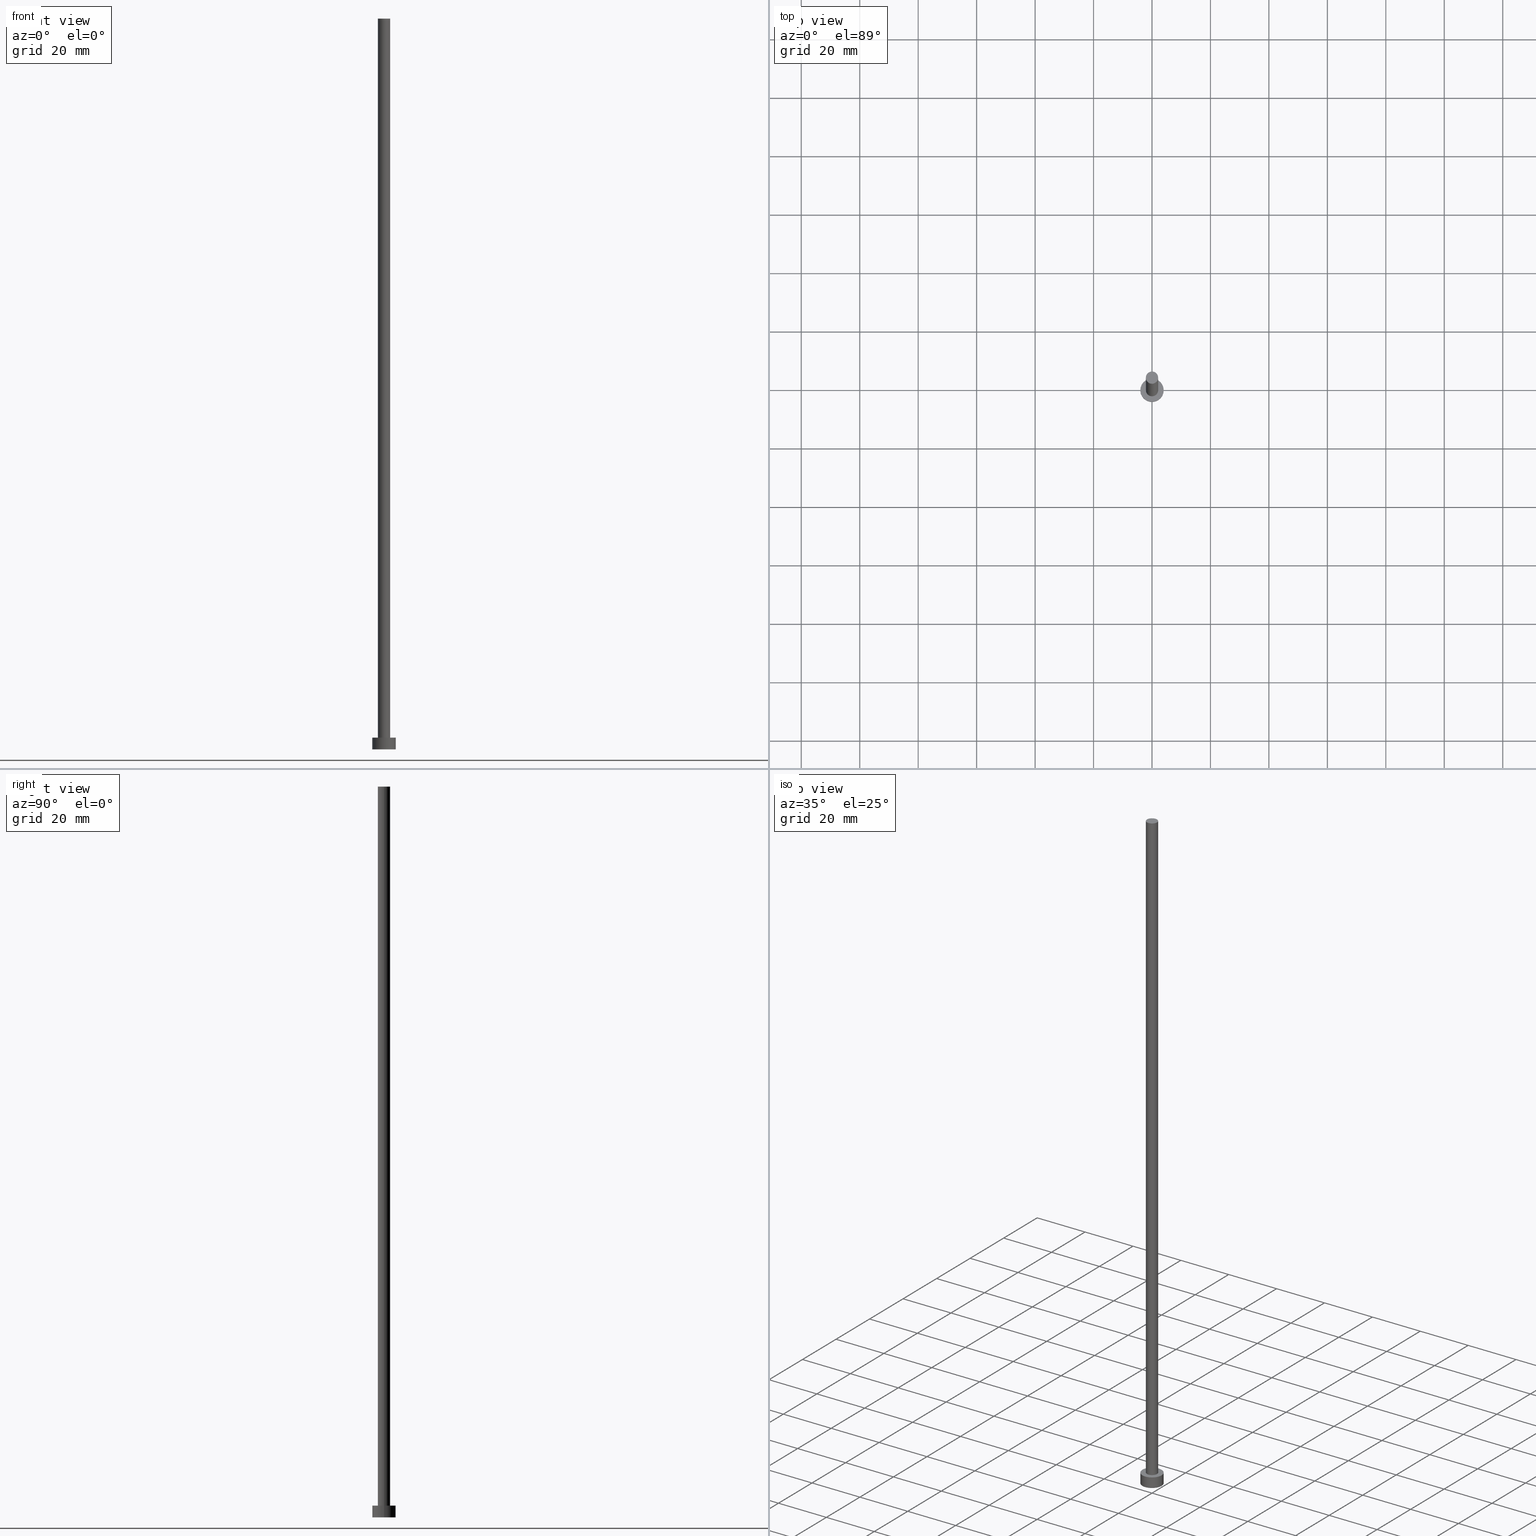
[diagram: canonical four-view strip — front | top / right | iso, engineering-drawing reading convention]
A machine part, canonical four-view strip (front | top / right | iso — engineering-drawing reading convention). The complete STEP part file that produces these views, byte-faithful:
ISO-10303-21;
HEADER;
FILE_DESCRIPTION (( 'STEP AP203' ),
    '1' );
FILE_NAME ('33a4.STEP',
    '2023-02-13T16:34:20',
    ( '' ),
    ( '' ),
    'SwSTEP 2.0',
    'SolidWorks 2019',
    '' );
FILE_SCHEMA (( 'CONFIG_CONTROL_DESIGN' ));
ENDSEC;

DATA;
#1 = PERSON_AND_ORGANIZATION_ROLE ( 'classification_officer' ) ;
#2 = PERSON_AND_ORGANIZATION ( #100, #73 ) ;
#3 = CIRCLE ( 'NONE', #251, 2.100000000000000089 ) ;
#4 = MECHANICAL_CONTEXT ( 'NONE', #171, 'mechanical' ) ;
#5 = DIRECTION ( 'NONE',  ( 1.000000000000000000, 0.000000000000000000, 0.000000000000000000 ) ) ;
#6 = ORIENTED_EDGE ( 'NONE', *, *, #119, .T. ) ;
#7 = AXIS2_PLACEMENT_3D ( 'NONE', #243, #83, #69 ) ;
#8 = ADVANCED_FACE ( 'NONE', ( #150 ), #140, .T. ) ;
#9 = CARTESIAN_POINT ( 'NONE',  ( -2.100000000000000089, 0.000000000000000000, 4.000000000000000000 ) ) ;
#10 = EDGE_LOOP ( 'NONE', ( #163, #85, #168, #194 ) ) ;
#11 = LINE ( 'NONE', #66, #172 ) ;
#12 = CARTESIAN_POINT ( 'NONE',  ( 0.000000000000000000, 0.000000000000000000, 4.000000000000000000 ) ) ;
#13 = ORIENTED_EDGE ( 'NONE', *, *, #121, .F. ) ;
#14 = AXIS2_PLACEMENT_3D ( 'NONE', #36, #129, #253 ) ;
#15 = DIRECTION ( 'NONE',  ( 0.000000000000000000, 0.000000000000000000, 1.000000000000000000 ) ) ;
#16 = DIRECTION ( 'NONE',  ( -0.000000000000000000, -0.000000000000000000, -1.000000000000000000 ) ) ;
#17 = AXIS2_PLACEMENT_3D ( 'NONE', #186, #33, #169 ) ;
#18 = EDGE_LOOP ( 'NONE', ( #220, #228 ) ) ;
#19 = PLANE ( 'NONE',  #133 ) ;
#20 = PERSON_AND_ORGANIZATION ( #100, #73 ) ;
#21 =( NAMED_UNIT ( * ) PLANE_ANGLE_UNIT ( ) SI_UNIT ( $, .RADIAN. ) );
#22 = DIRECTION ( 'NONE',  ( 0.000000000000000000, 0.000000000000000000, 1.000000000000000000 ) ) ;
#23 = PRODUCT_DEFINITION_FORMATION_WITH_SPECIFIED_SOURCE ( 'LIBOVOLN�', '', #95, .NOT_KNOWN. ) ;
#24 = PERSON_AND_ORGANIZATION ( #100, #73 ) ;
#25 = APPROVAL_PERSON_ORGANIZATION ( #2, #215, #130 ) ;
#26 = DIRECTION ( 'NONE',  ( 0.000000000000000000, 0.000000000000000000, 1.000000000000000000 ) ) ;
#27 = CC_DESIGN_DATE_AND_TIME_ASSIGNMENT ( #82, #165, ( #109 ) ) ;
#28 = CARTESIAN_POINT ( 'NONE',  ( 0.000000000000000000, 0.000000000000000000, 250.0000000000000000 ) ) ;
#29 = EDGE_CURVE ( 'NONE', #30, #204, #11, .T. ) ;
#30 = VERTEX_POINT ( 'NONE', #184 ) ;
#31 = AXIS2_PLACEMENT_3D ( 'NONE', #43, #26, #45 ) ;
#32 = ORIENTED_EDGE ( 'NONE', *, *, #235, .T. ) ;
#33 = DIRECTION ( 'NONE',  ( 0.000000000000000000, 0.000000000000000000, 1.000000000000000000 ) ) ;
#34 = VERTEX_POINT ( 'NONE', #161 ) ;
#35 = FACE_OUTER_BOUND ( 'NONE', #71, .T. ) ;
#36 = CARTESIAN_POINT ( 'NONE',  ( 0.000000000000000000, 0.000000000000000000, 4.000000000000000000 ) ) ;
#37 = EDGE_CURVE ( 'NONE', #144, #204, #248, .T. ) ;
#38 = CYLINDRICAL_SURFACE ( 'NONE', #218, 4.000000000000000000 ) ;
#39 = DIRECTION ( 'NONE',  ( 0.000000000000000000, 0.000000000000000000, 1.000000000000000000 ) ) ;
#40 = CC_DESIGN_APPROVAL ( #51, ( #109 ) ) ;
#41 = APPROVAL_DATE_TIME ( #59, #175 ) ;
#42 = DATE_AND_TIME ( #136, #185 ) ;
#43 = CARTESIAN_POINT ( 'NONE',  ( 0.000000000000000000, 0.000000000000000000, 0.000000000000000000 ) ) ;
#44 = CIRCLE ( 'NONE', #149, 2.100000000000000089 ) ;
#45 = DIRECTION ( 'NONE',  ( 1.000000000000000000, 0.000000000000000000, 0.000000000000000000 ) ) ;
#46 = DIRECTION ( 'NONE',  ( -0.000000000000000000, -0.000000000000000000, -1.000000000000000000 ) ) ;
#47 = AXIS2_PLACEMENT_3D ( 'NONE', #247, #188, #250 ) ;
#48 = EDGE_CURVE ( 'NONE', #34, #76, #232, .T. ) ;
#49 = EDGE_LOOP ( 'NONE', ( #234, #50 ) ) ;
#50 = ORIENTED_EDGE ( 'NONE', *, *, #37, .F. ) ;
#51 = APPROVAL ( #160, 'NEUR�EN�' ) ;
#52 = ORIENTED_EDGE ( 'NONE', *, *, #119, .F. ) ;
#53 = EDGE_LOOP ( 'NONE', ( #132, #208, #6, #32 ) ) ;
#54 = CC_DESIGN_PERSON_AND_ORGANIZATION_ASSIGNMENT ( #180, #221, ( #23 ) ) ;
#55 = CYLINDRICAL_SURFACE ( 'NONE', #67, 2.100000000000000089 ) ;
#56 = CC_DESIGN_APPROVAL ( #215, ( #23 ) ) ;
#57 = DATE_TIME_ROLE ( 'classification_date' ) ;
#58 = CYLINDRICAL_SURFACE ( 'NONE', #14, 4.000000000000000000 ) ;
#59 = DATE_AND_TIME ( #94, #254 ) ;
#60 = VECTOR ( 'NONE', #90, 1000.000000000000000 ) ;
#61 = PRODUCT_DEFINITION_SHAPE ( 'NONE', 'NONE',  #109 ) ;
#62 = APPROVAL_DATE_TIME ( #93, #215 ) ;
#63 = PRODUCT_RELATED_PRODUCT_CATEGORY ( 'detail', '', ( #95 ) ) ;
#64 = LOCAL_TIME ( 17, 34, 20.00000000000000000, #141 ) ;
#65 = PERSON_AND_ORGANIZATION_ROLE ( 'creator' ) ;
#66 = CARTESIAN_POINT ( 'NONE',  ( -4.000000000000000000, 0.000000000000000000, 4.000000000000000000 ) ) ;
#67 = AXIS2_PLACEMENT_3D ( 'NONE', #88, #148, #128 ) ;
#68 = EDGE_LOOP ( 'NONE', ( #210, #84 ) ) ;
#69 = DIRECTION ( 'NONE',  ( 1.000000000000000000, 0.000000000000000000, 0.000000000000000000 ) ) ;
#70 = PLANE ( 'NONE',  #47 ) ;
#71 = EDGE_LOOP ( 'NONE', ( #101, #75, #249, #52 ) ) ;
#72 = CARTESIAN_POINT ( 'NONE',  ( 2.100000000000000089, 2.571758278209441957E-16, 250.0000000000000000 ) ) ;
#73 = ORGANIZATION ( 'NEUR�EN�', 'NEUR�EN�', '' ) ;
#74 = CARTESIAN_POINT ( 'NONE',  ( 0.000000000000000000, 0.000000000000000000, 4.000000000000000000 ) ) ;
#75 = ORIENTED_EDGE ( 'NONE', *, *, #153, .T. ) ;
#76 = VERTEX_POINT ( 'NONE', #246 ) ;
#77 = DIRECTION ( 'NONE',  ( -0.000000000000000000, -0.000000000000000000, -1.000000000000000000 ) ) ;
#78 = CARTESIAN_POINT ( 'NONE',  ( -4.000000000000000000, 0.000000000000000000, 0.000000000000000000 ) ) ;
#79 = ADVANCED_FACE ( 'NONE', ( #227, #146 ), #19, .T. ) ;
#80 = UNCERTAINTY_MEASURE_WITH_UNIT (LENGTH_MEASURE( 1.000000000000000082E-05 ), #118, 'distance_accuracy_value', 'NONE');
#81 = APPROVAL_DATE_TIME ( #183, #51 ) ;
#82 = DATE_AND_TIME ( #225, #64 ) ;
#83 = DIRECTION ( 'NONE',  ( 0.000000000000000000, 0.000000000000000000, 1.000000000000000000 ) ) ;
#84 = ORIENTED_EDGE ( 'NONE', *, *, #145, .T. ) ;
#85 = ORIENTED_EDGE ( 'NONE', *, *, #255, .T. ) ;
#86 = AXIS2_PLACEMENT_3D ( 'NONE', #205, #174, #106 ) ;
#87 = ADVANCED_FACE ( 'NONE', ( #207 ), #122, .F. ) ;
#88 = CARTESIAN_POINT ( 'NONE',  ( 0.000000000000000000, 0.000000000000000000, 250.0000000000000000 ) ) ;
#89 = CLOSED_SHELL ( 'NONE', ( #157, #164, #239, #79, #87, #8, #135 ) ) ;
#90 = DIRECTION ( 'NONE',  ( -0.000000000000000000, -0.000000000000000000, -1.000000000000000000 ) ) ;
#91 = CC_DESIGN_SECURITY_CLASSIFICATION ( #226, ( #23 ) ) ;
#92 =( NAMED_UNIT ( * ) SI_UNIT ( $, .STERADIAN. ) SOLID_ANGLE_UNIT ( ) );
#93 = DATE_AND_TIME ( #192, #237 ) ;
#94 = CALENDAR_DATE ( 2023, 13, 2 ) ;
#95 = PRODUCT ( '33a4', '33a4', '', ( #4 ) ) ;
#96 = EDGE_CURVE ( 'NONE', #76, #34, #103, .T. ) ;
#97 = AXIS2_PLACEMENT_3D ( 'NONE', #203, #98, #5 ) ;
#98 = DIRECTION ( 'NONE',  ( 0.000000000000000000, 0.000000000000000000, 1.000000000000000000 ) ) ;
#99 = DIRECTION ( 'NONE',  ( -0.000000000000000000, -0.000000000000000000, -1.000000000000000000 ) ) ;
#100 = PERSON ( 'NEUR�EN�', 'NEUR�EN�', 'NEUR�EN�', ('NEUR�EN�'), ('NEUR�EN�'), ('NEUR�EN�') ) ;
#101 = ORIENTED_EDGE ( 'NONE', *, *, #48, .F. ) ;
#102 = LINE ( 'NONE', #187, #143 ) ;
#103 = CIRCLE ( 'NONE', #17, 2.100000000000000089 ) ;
#104 = DIRECTION ( 'NONE',  ( -1.000000000000000000, 0.000000000000000000, 0.000000000000000000 ) ) ;
#105 = VERTEX_POINT ( 'NONE', #244 ) ;
#106 = DIRECTION ( 'NONE',  ( 1.000000000000000000, 0.000000000000000000, -0.000000000000000000 ) ) ;
#107 = ADVANCED_BREP_SHAPE_REPRESENTATION ( '33a4', ( #238, #31 ), #110 ) ;
#108 = ORIENTED_EDGE ( 'NONE', *, *, #189, .T. ) ;
#109 = PRODUCT_DEFINITION ( 'NEZN�M�', '', #23, #230 ) ;
#110 =( GEOMETRIC_REPRESENTATION_CONTEXT ( 3 ) GLOBAL_UNCERTAINTY_ASSIGNED_CONTEXT ( ( #80 ) ) GLOBAL_UNIT_ASSIGNED_CONTEXT ( ( #118, #21, #92 ) ) REPRESENTATION_CONTEXT ( 'NONE', 'WORKASPACE' ) );
#111 = DIRECTION ( 'NONE',  ( 1.000000000000000000, 0.000000000000000000, 0.000000000000000000 ) ) ;
#112 = COORDINATED_UNIVERSAL_TIME_OFFSET ( 1, 0, .AHEAD. ) ;
#113 = FACE_OUTER_BOUND ( 'NONE', #173, .T. ) ;
#114 = CARTESIAN_POINT ( 'NONE',  ( 4.000000000000000000, 4.898587196589412829E-16, 4.000000000000000000 ) ) ;
#115 = CC_DESIGN_PERSON_AND_ORGANIZATION_ASSIGNMENT ( #162, #65, ( #109 ) ) ;
#116 = CARTESIAN_POINT ( 'NONE',  ( 0.000000000000000000, 0.000000000000000000, 4.000000000000000000 ) ) ;
#117 = APPROVAL_STATUS ( 'not_yet_approved' ) ;
#118 =( LENGTH_UNIT ( ) NAMED_UNIT ( * ) SI_UNIT ( .MILLI., .METRE. ) );
#119 = EDGE_CURVE ( 'NONE', #76, #123, #102, .T. ) ;
#120 = APPROVAL_PERSON_ORGANIZATION ( #213, #175, #176 ) ;
#121 = EDGE_CURVE ( 'NONE', #30, #233, #211, .T. ) ;
#122 = PLANE ( 'NONE',  #86 ) ;
#123 = VERTEX_POINT ( 'NONE', #9 ) ;
#124 = DIRECTION ( 'NONE',  ( 1.000000000000000000, 0.000000000000000000, 0.000000000000000000 ) ) ;
#125 = ORIENTED_EDGE ( 'NONE', *, *, #29, .T. ) ;
#126 = DIRECTION ( 'NONE',  ( -0.000000000000000000, -0.000000000000000000, -1.000000000000000000 ) ) ;
#127 = AXIS2_PLACEMENT_3D ( 'NONE', #219, #39, #131 ) ;
#128 = DIRECTION ( 'NONE',  ( -1.000000000000000000, 0.000000000000000000, 0.000000000000000000 ) ) ;
#129 = DIRECTION ( 'NONE',  ( -0.000000000000000000, -0.000000000000000000, -1.000000000000000000 ) ) ;
#130 = APPROVAL_ROLE ( '' ) ;
#131 = DIRECTION ( 'NONE',  ( 1.000000000000000000, 0.000000000000000000, 0.000000000000000000 ) ) ;
#132 = ORIENTED_EDGE ( 'NONE', *, *, #153, .F. ) ;
#133 = AXIS2_PLACEMENT_3D ( 'NONE', #116, #22, #158 ) ;
#134 = APPLICATION_PROTOCOL_DEFINITION ( 'international standard', 'config_control_design', 1994, #171 ) ;
#135 = ADVANCED_FACE ( 'NONE', ( #245 ), #70, .T. ) ;
#136 = CALENDAR_DATE ( 2023, 13, 2 ) ;
#137 = CIRCLE ( 'NONE', #127, 4.000000000000000000 ) ;
#138 = EDGE_CURVE ( 'NONE', #105, #123, #3, .T. ) ;
#139 = APPLICATION_PROTOCOL_DEFINITION ( 'international standard', 'config_control_design', 1994, #154 ) ;
#140 = CYLINDRICAL_SURFACE ( 'NONE', #224, 2.100000000000000089 ) ;
#141 = COORDINATED_UNIVERSAL_TIME_OFFSET ( 1, 0, .AHEAD. ) ;
#142 = CC_DESIGN_PERSON_AND_ORGANIZATION_ASSIGNMENT ( #196, #156, ( #23 ) ) ;
#143 = VECTOR ( 'NONE', #77, 1000.000000000000000 ) ;
#144 = VERTEX_POINT ( 'NONE', #167 ) ;
#145 = EDGE_CURVE ( 'NONE', #233, #30, #159, .T. ) ;
#146 = FACE_OUTER_BOUND ( 'NONE', #68, .T. ) ;
#147 = DIRECTION ( 'NONE',  ( 0.000000000000000000, 0.000000000000000000, 1.000000000000000000 ) ) ;
#148 = DIRECTION ( 'NONE',  ( -0.000000000000000000, -0.000000000000000000, -1.000000000000000000 ) ) ;
#149 = AXIS2_PLACEMENT_3D ( 'NONE', #212, #190, #111 ) ;
#150 = FACE_OUTER_BOUND ( 'NONE', #53, .T. ) ;
#151 = CARTESIAN_POINT ( 'NONE',  ( 0.000000000000000000, 0.000000000000000000, 4.000000000000000000 ) ) ;
#152 = DIRECTION ( 'NONE',  ( 1.000000000000000000, 0.000000000000000000, 0.000000000000000000 ) ) ;
#153 = EDGE_CURVE ( 'NONE', #34, #105, #209, .T. ) ;
#154 = APPLICATION_CONTEXT ( 'configuration controlled 3d designs of mechanical parts and assemblies' ) ;
#155 = COORDINATED_UNIVERSAL_TIME_OFFSET ( 1, 0, .AHEAD. ) ;
#156 = PERSON_AND_ORGANIZATION_ROLE ( 'creator' ) ;
#157 = ADVANCED_FACE ( 'NONE', ( #35 ), #55, .T. ) ;
#158 = DIRECTION ( 'NONE',  ( 1.000000000000000000, 0.000000000000000000, -0.000000000000000000 ) ) ;
#159 = CIRCLE ( 'NONE', #236, 4.000000000000000000 ) ;
#160 = APPROVAL_STATUS ( 'not_yet_approved' ) ;
#161 = CARTESIAN_POINT ( 'NONE',  ( 2.100000000000000089, 2.571758278209441957E-16, 250.0000000000000000 ) ) ;
#162 = PERSON_AND_ORGANIZATION ( #100, #73 ) ;
#163 = ORIENTED_EDGE ( 'NONE', *, *, #145, .F. ) ;
#164 = ADVANCED_FACE ( 'NONE', ( #231 ), #58, .T. ) ;
#165 = DATE_TIME_ROLE ( 'creation_date' ) ;
#166 = DIRECTION ( 'NONE',  ( 1.000000000000000000, 0.000000000000000000, 0.000000000000000000 ) ) ;
#167 = CARTESIAN_POINT ( 'NONE',  ( 4.000000000000000000, 4.898587196589412829E-16, 0.000000000000000000 ) ) ;
#168 = ORIENTED_EDGE ( 'NONE', *, *, #37, .T. ) ;
#169 = DIRECTION ( 'NONE',  ( 1.000000000000000000, 0.000000000000000000, 0.000000000000000000 ) ) ;
#170 = ORIENTED_EDGE ( 'NONE', *, *, #48, .T. ) ;
#171 = APPLICATION_CONTEXT ( 'configuration controlled 3d designs of mechanical parts and assemblies' ) ;
#172 = VECTOR ( 'NONE', #99, 1000.000000000000000 ) ;
#173 = EDGE_LOOP ( 'NONE', ( #241, #13, #125, #108 ) ) ;
#174 = DIRECTION ( 'NONE',  ( 0.000000000000000000, 0.000000000000000000, 1.000000000000000000 ) ) ;
#175 = APPROVAL ( #178, 'NEUR�EN�' ) ;
#176 = APPROVAL_ROLE ( '' ) ;
#177 = LOCAL_TIME ( 17, 34, 20.00000000000000000, #199 ) ;
#178 = APPROVAL_STATUS ( 'not_yet_approved' ) ;
#179 = AXIS2_PLACEMENT_3D ( 'NONE', #12, #15, #166 ) ;
#180 = PERSON_AND_ORGANIZATION ( #100, #73 ) ;
#181 = PERSON_AND_ORGANIZATION ( #100, #73 ) ;
#182 = CALENDAR_DATE ( 2023, 13, 2 ) ;
#183 = DATE_AND_TIME ( #182, #177 ) ;
#184 = CARTESIAN_POINT ( 'NONE',  ( -4.000000000000000000, 0.000000000000000000, 4.000000000000000000 ) ) ;
#185 = LOCAL_TIME ( 17, 34, 20.00000000000000000, #217 ) ;
#186 = CARTESIAN_POINT ( 'NONE',  ( 0.000000000000000000, 0.000000000000000000, 250.0000000000000000 ) ) ;
#187 = CARTESIAN_POINT ( 'NONE',  ( -2.100000000000000089, 0.000000000000000000, 250.0000000000000000 ) ) ;
#188 = DIRECTION ( 'NONE',  ( 0.000000000000000000, 0.000000000000000000, 1.000000000000000000 ) ) ;
#189 = EDGE_CURVE ( 'NONE', #204, #144, #137, .T. ) ;
#190 = DIRECTION ( 'NONE',  ( 0.000000000000000000, 0.000000000000000000, 1.000000000000000000 ) ) ;
#191 = CARTESIAN_POINT ( 'NONE',  ( 0.000000000000000000, 0.000000000000000000, 4.000000000000000000 ) ) ;
#192 = CALENDAR_DATE ( 2023, 13, 2 ) ;
#193 = LINE ( 'NONE', #197, #60 ) ;
#194 = ORIENTED_EDGE ( 'NONE', *, *, #29, .F. ) ;
#195 = CC_DESIGN_PERSON_AND_ORGANIZATION_ASSIGNMENT ( #20, #1, ( #226 ) ) ;
#196 = PERSON_AND_ORGANIZATION ( #100, #73 ) ;
#197 = CARTESIAN_POINT ( 'NONE',  ( 4.000000000000000000, 4.898587196589412829E-16, 4.000000000000000000 ) ) ;
#198 = CC_DESIGN_APPROVAL ( #175, ( #226 ) ) ;
#199 = COORDINATED_UNIVERSAL_TIME_OFFSET ( 1, 0, .AHEAD. ) ;
#200 = APPROVAL_ROLE ( '' ) ;
#201 = APPROVAL_PERSON_ORGANIZATION ( #181, #51, #200 ) ;
#202 = CC_DESIGN_PERSON_AND_ORGANIZATION_ASSIGNMENT ( #24, #240, ( #95 ) ) ;
#203 = CARTESIAN_POINT ( 'NONE',  ( 0.000000000000000000, 0.000000000000000000, 0.000000000000000000 ) ) ;
#204 = VERTEX_POINT ( 'NONE', #78 ) ;
#205 = CARTESIAN_POINT ( 'NONE',  ( 0.000000000000000000, 0.000000000000000000, 0.000000000000000000 ) ) ;
#206 = ORIENTED_EDGE ( 'NONE', *, *, #96, .T. ) ;
#207 = FACE_OUTER_BOUND ( 'NONE', #49, .T. ) ;
#208 = ORIENTED_EDGE ( 'NONE', *, *, #96, .F. ) ;
#209 = LINE ( 'NONE', #72, #242 ) ;
#210 = ORIENTED_EDGE ( 'NONE', *, *, #121, .T. ) ;
#211 = CIRCLE ( 'NONE', #179, 4.000000000000000000 ) ;
#212 = CARTESIAN_POINT ( 'NONE',  ( 0.000000000000000000, 0.000000000000000000, 4.000000000000000000 ) ) ;
#213 = PERSON_AND_ORGANIZATION ( #100, #73 ) ;
#214 = DIRECTION ( 'NONE',  ( -1.000000000000000000, 0.000000000000000000, 0.000000000000000000 ) ) ;
#215 = APPROVAL ( #117, 'NEUR�EN�' ) ;
#216 = EDGE_LOOP ( 'NONE', ( #206, #170 ) ) ;
#217 = COORDINATED_UNIVERSAL_TIME_OFFSET ( 1, 0, .AHEAD. ) ;
#218 = AXIS2_PLACEMENT_3D ( 'NONE', #191, #16, #214 ) ;
#219 = CARTESIAN_POINT ( 'NONE',  ( 0.000000000000000000, 0.000000000000000000, 0.000000000000000000 ) ) ;
#220 = ORIENTED_EDGE ( 'NONE', *, *, #235, .F. ) ;
#221 = PERSON_AND_ORGANIZATION_ROLE ( 'design_supplier' ) ;
#222 = CC_DESIGN_DATE_AND_TIME_ASSIGNMENT ( #42, #57, ( #226 ) ) ;
#223 = SECURITY_CLASSIFICATION_LEVEL ( 'unclassified' ) ;
#224 = AXIS2_PLACEMENT_3D ( 'NONE', #28, #46, #104 ) ;
#225 = CALENDAR_DATE ( 2023, 13, 2 ) ;
#226 = SECURITY_CLASSIFICATION ( '', '', #223 ) ;
#227 = FACE_BOUND ( 'NONE', #18, .T. ) ;
#228 = ORIENTED_EDGE ( 'NONE', *, *, #138, .F. ) ;
#229 = DIRECTION ( 'NONE',  ( 0.000000000000000000, 0.000000000000000000, 1.000000000000000000 ) ) ;
#230 = DESIGN_CONTEXT ( 'detailed design', #154, 'design' ) ;
#231 = FACE_OUTER_BOUND ( 'NONE', #10, .T. ) ;
#232 = CIRCLE ( 'NONE', #7, 2.100000000000000089 ) ;
#233 = VERTEX_POINT ( 'NONE', #114 ) ;
#234 = ORIENTED_EDGE ( 'NONE', *, *, #189, .F. ) ;
#235 = EDGE_CURVE ( 'NONE', #123, #105, #44, .T. ) ;
#236 = AXIS2_PLACEMENT_3D ( 'NONE', #151, #147, #152 ) ;
#237 = LOCAL_TIME ( 17, 34, 20.00000000000000000, #155 ) ;
#238 = MANIFOLD_SOLID_BREP ( 'P�idat vysunut�m3', #89 ) ;
#239 = ADVANCED_FACE ( 'NONE', ( #113 ), #38, .T. ) ;
#240 = PERSON_AND_ORGANIZATION_ROLE ( 'design_owner' ) ;
#241 = ORIENTED_EDGE ( 'NONE', *, *, #255, .F. ) ;
#242 = VECTOR ( 'NONE', #126, 1000.000000000000000 ) ;
#243 = CARTESIAN_POINT ( 'NONE',  ( 0.000000000000000000, 0.000000000000000000, 250.0000000000000000 ) ) ;
#244 = CARTESIAN_POINT ( 'NONE',  ( 2.100000000000000089, 2.571758278209441957E-16, 4.000000000000000000 ) ) ;
#245 = FACE_OUTER_BOUND ( 'NONE', #216, .T. ) ;
#246 = CARTESIAN_POINT ( 'NONE',  ( -2.100000000000000089, 0.000000000000000000, 250.0000000000000000 ) ) ;
#247 = CARTESIAN_POINT ( 'NONE',  ( 0.000000000000000000, 0.000000000000000000, 250.0000000000000000 ) ) ;
#248 = CIRCLE ( 'NONE', #97, 4.000000000000000000 ) ;
#249 = ORIENTED_EDGE ( 'NONE', *, *, #138, .T. ) ;
#250 = DIRECTION ( 'NONE',  ( 1.000000000000000000, 0.000000000000000000, -0.000000000000000000 ) ) ;
#251 = AXIS2_PLACEMENT_3D ( 'NONE', #74, #229, #124 ) ;
#252 = SHAPE_DEFINITION_REPRESENTATION ( #61, #107 ) ;
#253 = DIRECTION ( 'NONE',  ( -1.000000000000000000, 0.000000000000000000, 0.000000000000000000 ) ) ;
#254 = LOCAL_TIME ( 17, 34, 20.00000000000000000, #112 ) ;
#255 = EDGE_CURVE ( 'NONE', #233, #144, #193, .T. ) ;
ENDSEC;
END-ISO-10303-21;
